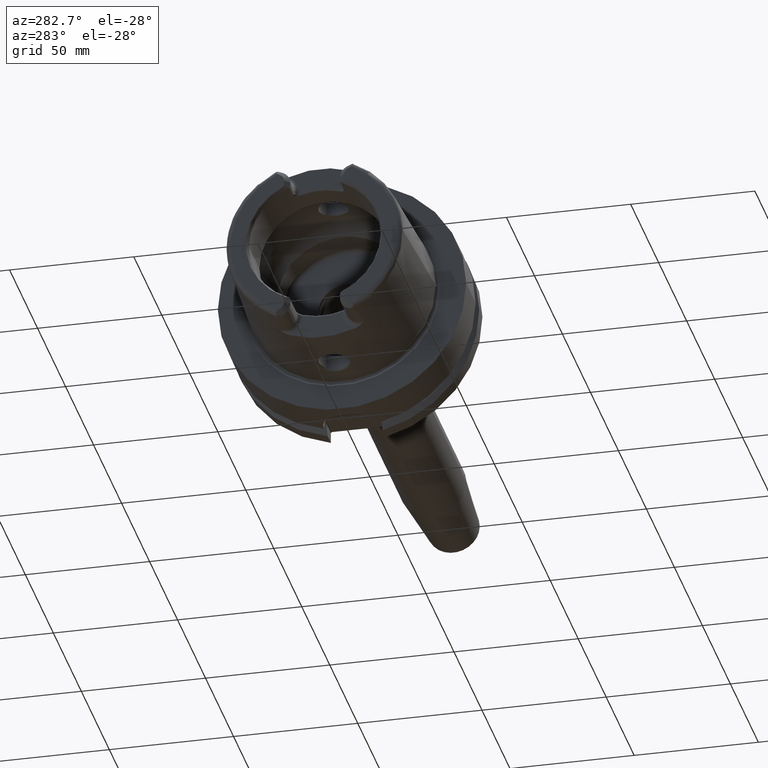
[diagram: clean part render]
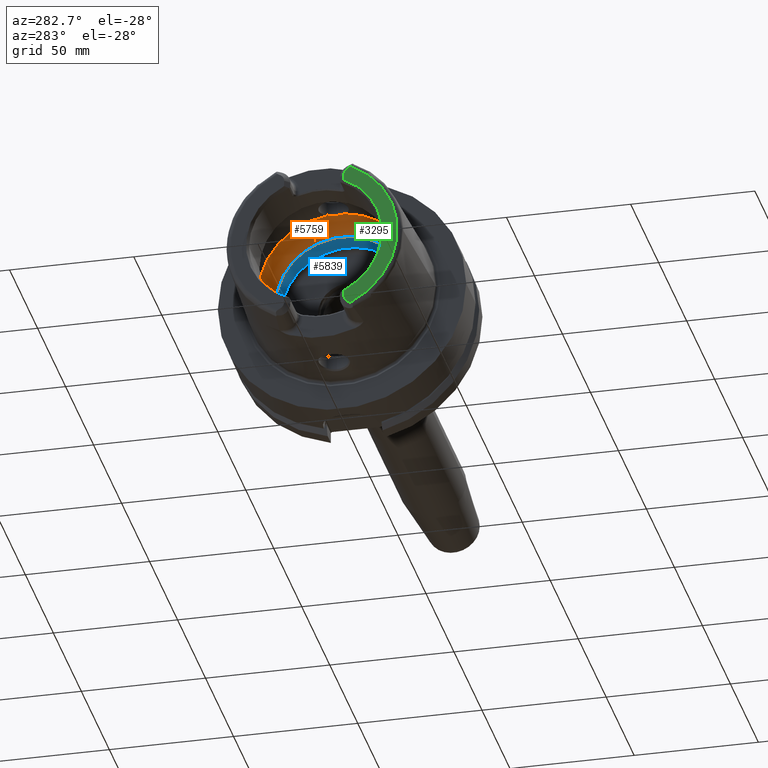
[diagram: same view with three faces highlighted in distinct colors, each labeled with its STEP entity id]
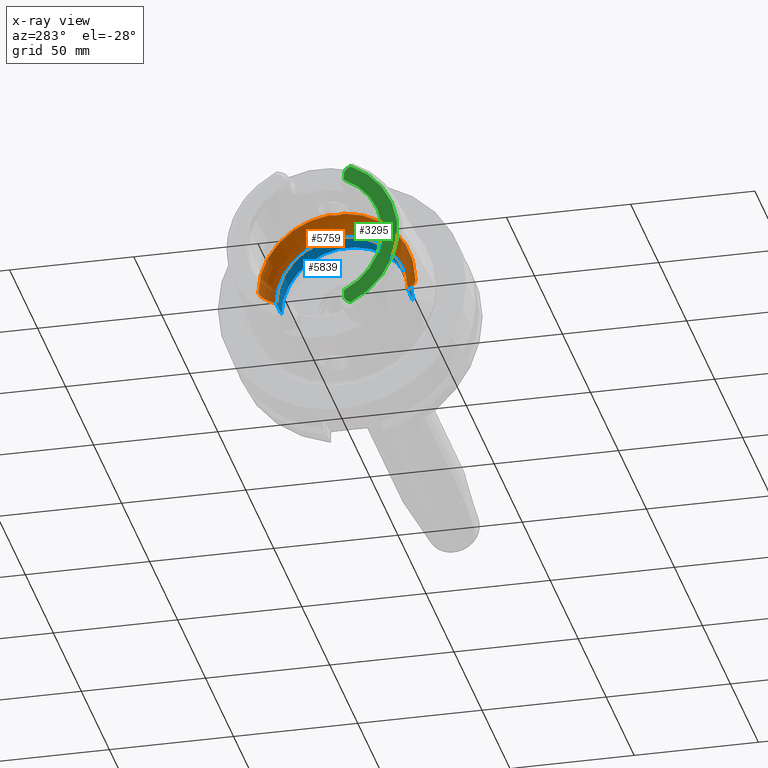
[diagram: x-ray of the same camera — body ghosted, the three highlighted faces saturated]
A machine part, auxiliary view with three faces highlighted in distinct colors.
The next image is the same camera in x-ray (body ghosted, the three faces saturated) — at least one of them is partly hidden behind the body in this view.
Their STEP definitions:

[orange] entity #5759 — the highlighted toroidal blend (fillet) surface has major radius 19.5 mm and minor (blend) radius 12 mm.
#2082=CARTESIAN_POINT('',(-9.E0,0.E0,3.147008518506E1));
#2083=CARTESIAN_POINT('',(-9.E0,2.141252053900E-1,3.147008518506E1));
#2084=CARTESIAN_POINT('',(-9.022897579641E0,6.436731047292E-1,
3.146736073712E1));
#2085=CARTESIAN_POINT('',(-9.127427069178E0,1.286248325661E0,3.145454181001E1));
#2086=CARTESIAN_POINT('',(-9.301031145484E0,1.913730198969E0,3.143197920586E1));
#2087=CARTESIAN_POINT('',(-9.539946842554E0,2.515068696018E0,3.139832080387E1));
#2088=CARTESIAN_POINT('',(-9.738529982809E0,2.891645116602E0,3.136752560017E1));
#2089=CARTESIAN_POINT('',(-9.846794344809E0,3.073185883624E0,3.134972932139E1));
#2091=CARTESIAN_POINT('',(-9.846794344809E0,-3.073185883624E0,
3.134972932139E1));
#2092=CARTESIAN_POINT('',(-9.738534471789E0,-2.891652643851E0,
3.136752486228E1));
#2093=CARTESIAN_POINT('',(-9.539946477828E0,-2.515078628379E0,
3.139832107651E1));
#2094=CARTESIAN_POINT('',(-9.300974895981E0,-1.913573808680E0,
3.143198691417E1));
#2095=CARTESIAN_POINT('',(-9.127396838585E0,-1.286102505522E0,
3.145454553504E1));
#2096=CARTESIAN_POINT('',(-9.022886850943E0,-6.435548392987E-1,
3.146736203025E1));
#2097=CARTESIAN_POINT('',(-9.E0,-2.140793620984E-1,3.147008518506E1));
#2098=CARTESIAN_POINT('',(-9.E0,0.E0,3.147008518506E1));
#2100=CARTESIAN_POINT('',(-1.E-1,0.E0,0.E0));
#2101=DIRECTION('',(1.E0,0.E0,0.E0));
#2102=DIRECTION('',(0.E0,1.E0,0.E0));
#2103=AXIS2_PLACEMENT_3D('',#2100,#2101,#2102);
#2129=CARTESIAN_POINT('',(-9.846794344809E0,0.E0,0.E0));
#2130=DIRECTION('',(1.E0,0.E0,0.E0));
#2131=DIRECTION('',(0.E0,1.E0,0.E0));
#2132=AXIS2_PLACEMENT_3D('',#2129,#2130,#2131);
#2134=CARTESIAN_POINT('',(-9.846794344809E0,0.E0,0.E0));
#2135=DIRECTION('',(1.E0,0.E0,0.E0));
#2136=DIRECTION('',(0.E0,-9.756145662299E-2,9.952295022665E-1));
#2137=AXIS2_PLACEMENT_3D('',#2134,#2135,#2136);
#2238=CARTESIAN_POINT('',(-9.846794344809E0,1.95E1,0.E0));
#2239=DIRECTION('',(0.E0,0.E0,1.E0));
#2240=DIRECTION('',(8.122328620674E-1,5.833333333333E-1,0.E0));
#2241=AXIS2_PLACEMENT_3D('',#2238,#2239,#2240);
#2248=CARTESIAN_POINT('',(-9.846794344809E0,-1.95E1,0.E0));
#2249=DIRECTION('',(0.E0,0.E0,-1.E0));
#2250=DIRECTION('',(8.122328620674E-1,-5.833333333333E-1,0.E0));
#2251=AXIS2_PLACEMENT_3D('',#2248,#2249,#2250);
#2753=CARTESIAN_POINT('',(-1.E-1,2.65E1,0.E0));
#2754=VERTEX_POINT('',#2753);
#2755=CARTESIAN_POINT('',(-9.846794344809E0,3.15E1,0.E0));
#2756=VERTEX_POINT('',#2755);
#2765=CARTESIAN_POINT('',(-1.E-1,-2.65E1,0.E0));
#2766=VERTEX_POINT('',#2765);
#2767=CARTESIAN_POINT('',(-9.846794344809E0,-3.15E1,0.E0));
#2768=VERTEX_POINT('',#2767);
#2934=VERTEX_POINT('',#2082);
#2935=VERTEX_POINT('',#2089);
#2936=VERTEX_POINT('',#2091);
#5740=CARTESIAN_POINT('',(-9.846794344809E0,0.E0,0.E0));
#5741=DIRECTION('',(1.E0,0.E0,0.E0));
#5742=DIRECTION('',(0.E0,-1.E0,0.E0));
#5743=AXIS2_PLACEMENT_3D('',#5740,#5741,#5742);
#5744=TOROIDAL_SURFACE('',#5743,1.95E1,1.2E1);
#5745=ORIENTED_EDGE('',*,*,#5717,.F.);
#5746=ORIENTED_EDGE('',*,*,#5443,.F.);
#5748=ORIENTED_EDGE('',*,*,#5747,.T.);
#5750=ORIENTED_EDGE('',*,*,#5749,.F.);
#5752=ORIENTED_EDGE('',*,*,#5751,.F.);
#5754=ORIENTED_EDGE('',*,*,#5753,.T.);
#5756=ORIENTED_EDGE('',*,*,#5755,.T.);
#5757=EDGE_LOOP('',(#5745,#5746,#5748,#5750,#5752,#5754,#5756));
#5758=FACE_OUTER_BOUND('',#5757,.F.);
#5759=ADVANCED_FACE('',(#5758),#5744,.F.);
#2090=B_SPLINE_CURVE_WITH_KNOTS('',3,(#2082,#2083,#2084,#2085,#2086,#2087,#2088,
#2089),.UNSPECIFIED.,.F.,.F.,(4,1,1,1,1,4),(0.E0,2.E-1,4.E-1,6.E-1,8.E-1,1.E0),
.UNSPECIFIED.);
#2099=B_SPLINE_CURVE_WITH_KNOTS('',3,(#2091,#2092,#2093,#2094,#2095,#2096,#2097,
#2098),.UNSPECIFIED.,.F.,.F.,(4,1,1,1,1,4),(0.E0,2.E-1,4.E-1,6.E-1,8.E-1,1.E0),
.UNSPECIFIED.);
#2104=CIRCLE('',#2103,2.65E1);
#2133=CIRCLE('',#2132,3.15E1);
#2138=CIRCLE('',#2137,3.15E1);
#2242=CIRCLE('',#2241,1.2E1);
#2252=CIRCLE('',#2251,1.2E1);
#5443=EDGE_CURVE('',#2936,#2934,#2099,.T.);
#5717=EDGE_CURVE('',#2934,#2935,#2090,.T.);
#5747=EDGE_CURVE('',#2936,#2768,#2138,.T.);
#5749=EDGE_CURVE('',#2766,#2768,#2252,.T.);
#5751=EDGE_CURVE('',#2754,#2766,#2104,.T.);
#5753=EDGE_CURVE('',#2754,#2756,#2242,.T.);
#5755=EDGE_CURVE('',#2756,#2935,#2133,.T.);

[blue] entity #5839 — the highlighted cylindrical surface (partial cylindrical patch) has radius 26.5 mm, axis along (1, 0, 0).
#2100=CARTESIAN_POINT('',(-1.E-1,0.E0,0.E0));
#2101=DIRECTION('',(1.E0,0.E0,0.E0));
#2102=DIRECTION('',(0.E0,1.E0,0.E0));
#2103=AXIS2_PLACEMENT_3D('',#2100,#2101,#2102);
#2262=DIRECTION('',(-1.E0,0.E0,0.E0));
#2263=VECTOR('',#2262,9.4E0);
#2264=CARTESIAN_POINT('',(9.3E0,2.65E1,0.E0));
#2265=LINE('',#2264,#2263);
#2271=DIRECTION('',(-1.E0,0.E0,0.E0));
#2272=VECTOR('',#2271,9.4E0);
#2273=CARTESIAN_POINT('',(9.3E0,-2.65E1,0.E0));
#2274=LINE('',#2273,#2272);
#2275=CARTESIAN_POINT('',(9.3E0,0.E0,0.E0));
#2276=DIRECTION('',(1.E0,0.E0,0.E0));
#2277=DIRECTION('',(0.E0,1.E0,0.E0));
#2278=AXIS2_PLACEMENT_3D('',#2275,#2276,#2277);
#2746=CARTESIAN_POINT('',(9.3E0,2.65E1,0.E0));
#2748=VERTEX_POINT('',#2746);
#2750=CARTESIAN_POINT('',(9.3E0,-2.65E1,0.E0));
#2752=VERTEX_POINT('',#2750);
#2753=CARTESIAN_POINT('',(-1.E-1,2.65E1,0.E0));
#2754=VERTEX_POINT('',#2753);
#2765=CARTESIAN_POINT('',(-1.E-1,-2.65E1,0.E0));
#2766=VERTEX_POINT('',#2765);
#5827=CARTESIAN_POINT('',(-5.3125E1,0.E0,0.E0));
#5828=DIRECTION('',(1.E0,0.E0,0.E0));
#5829=DIRECTION('',(0.E0,-1.E0,0.E0));
#5830=AXIS2_PLACEMENT_3D('',#5827,#5828,#5829);
#5831=CYLINDRICAL_SURFACE('',#5830,2.65E1);
#5832=ORIENTED_EDGE('',*,*,#5817,.T.);
#5833=ORIENTED_EDGE('',*,*,#5751,.T.);
#5834=ORIENTED_EDGE('',*,*,#5821,.F.);
#5836=ORIENTED_EDGE('',*,*,#5835,.F.);
#5837=EDGE_LOOP('',(#5832,#5833,#5834,#5836));
#5838=FACE_OUTER_BOUND('',#5837,.F.);
#5839=ADVANCED_FACE('',(#5838),#5831,.F.);
#2104=CIRCLE('',#2103,2.65E1);
#2279=CIRCLE('',#2278,2.65E1);
#5751=EDGE_CURVE('',#2754,#2766,#2104,.T.);
#5817=EDGE_CURVE('',#2748,#2754,#2265,.T.);
#5821=EDGE_CURVE('',#2752,#2766,#2274,.T.);
#5835=EDGE_CURVE('',#2748,#2752,#2279,.T.);

[green] entity #3295 — the highlighted planar face has unit normal (1, 0, 0).
#126=DIRECTION('',(0.E0,0.E0,-1.E0));
#127=VECTOR('',#126,2.370180025047E0);
#128=CARTESIAN_POINT('',(-5.E1,-1.201E1,-2.458981997495E1));
#129=LINE('',#128,#127);
#130=DIRECTION('',(0.E0,0.E0,1.E0));
#131=VECTOR('',#130,2.370180025047E0);
#132=CARTESIAN_POINT('',(-5.E1,-1.201E1,2.458981997495E1));
#133=LINE('',#132,#131);
#134=CARTESIAN_POINT('',(-5.E1,-1.501E1,2.696E1));
#135=DIRECTION('',(1.E0,0.E0,0.E0));
#136=DIRECTION('',(0.E0,1.E0,-1.657933050107E-14));
#137=AXIS2_PLACEMENT_3D('',#134,#135,#136);
#139=DIRECTION('',(0.E0,8.533905854017E-1,-5.212720103245E-1));
#140=VECTOR('',#139,1.392150953463E0);
#141=CARTESIAN_POINT('',(-5.E1,-1.463423248617E1,3.024586108239E1));
#142=LINE('',#141,#140);
#143=DIRECTION('',(0.E0,8.533905854017E-1,5.212720103245E-1));
#144=VECTOR('',#143,1.392150953463E0);
#145=CARTESIAN_POINT('',(-5.E1,-1.463423248617E1,-3.024586108239E1));
#146=LINE('',#145,#144);
#147=CARTESIAN_POINT('',(-5.E1,-1.501E1,-2.696E1));
#148=DIRECTION('',(-1.E0,0.E0,0.E0));
#149=DIRECTION('',(0.E0,1.E0,0.E0));
#150=AXIS2_PLACEMENT_3D('',#147,#148,#149);
#197=CARTESIAN_POINT('',(-5.E1,0.E0,0.E0));
#198=DIRECTION('',(1.E0,0.E0,0.E0));
#199=DIRECTION('',(0.E0,-4.388653384185E-1,8.985528447091E-1));
#200=AXIS2_PLACEMENT_3D('',#197,#198,#199);
#359=CARTESIAN_POINT('',(-5.E1,0.E0,0.E0));
#360=DIRECTION('',(-1.E0,0.E0,0.E0));
#361=DIRECTION('',(0.E0,-4.355401503799E-1,-9.001693048572E-1));
#362=AXIS2_PLACEMENT_3D('',#359,#360,#361);
#2820=CARTESIAN_POINT('',(-5.E1,-1.201E1,2.458981997495E1));
#2821=CARTESIAN_POINT('',(-5.E1,-1.201E1,2.696E1));
#2822=VERTEX_POINT('',#2820);
#2823=VERTEX_POINT('',#2821);
#2824=CARTESIAN_POINT('',(-5.E1,-1.344618396903E1,2.952017175621E1));
#2825=VERTEX_POINT('',#2824);
#2826=CARTESIAN_POINT('',(-5.E1,-1.463423248617E1,3.024586108239E1));
#2827=VERTEX_POINT('',#2826);
#2913=CARTESIAN_POINT('',(-5.E1,-1.201E1,-2.458981997495E1));
#2914=CARTESIAN_POINT('',(-5.E1,-1.201E1,-2.696E1));
#2915=VERTEX_POINT('',#2913);
#2916=VERTEX_POINT('',#2914);
#2917=CARTESIAN_POINT('',(-5.E1,-1.344618396903E1,-2.952017175621E1));
#2918=VERTEX_POINT('',#2917);
#2919=CARTESIAN_POINT('',(-5.E1,-1.463423248617E1,-3.024586108239E1));
#2920=VERTEX_POINT('',#2919);
#3273=CARTESIAN_POINT('',(-5.E1,0.E0,0.E0));
#3274=DIRECTION('',(1.E0,0.E0,0.E0));
#3275=DIRECTION('',(0.E0,-1.E0,0.E0));
#3276=AXIS2_PLACEMENT_3D('',#3273,#3274,#3275);
#3277=PLANE('',#3276);
#3279=ORIENTED_EDGE('',*,*,#3278,.F.);
#3281=ORIENTED_EDGE('',*,*,#3280,.F.);
#3283=ORIENTED_EDGE('',*,*,#3282,.T.);
#3285=ORIENTED_EDGE('',*,*,#3284,.T.);
#3286=ORIENTED_EDGE('',*,*,#3237,.F.);
#3288=ORIENTED_EDGE('',*,*,#3287,.F.);
#3290=ORIENTED_EDGE('',*,*,#3289,.T.);
#3292=ORIENTED_EDGE('',*,*,#3291,.F.);
#3293=EDGE_LOOP('',(#3279,#3281,#3283,#3285,#3286,#3288,#3290,#3292));
#3294=FACE_OUTER_BOUND('',#3293,.F.);
#3295=ADVANCED_FACE('',(#3294),#3277,.F.);
#138=CIRCLE('',#137,3.E0);
#151=CIRCLE('',#150,3.E0);
#201=CIRCLE('',#200,2.736602540378E1);
#363=CIRCLE('',#362,3.360019156306E1);
#3237=EDGE_CURVE('',#2827,#2825,#142,.T.);
#3278=EDGE_CURVE('',#2915,#2916,#129,.T.);
#3280=EDGE_CURVE('',#2822,#2915,#201,.T.);
#3282=EDGE_CURVE('',#2822,#2823,#133,.T.);
#3284=EDGE_CURVE('',#2823,#2825,#138,.T.);
#3287=EDGE_CURVE('',#2920,#2827,#363,.T.);
#3289=EDGE_CURVE('',#2920,#2918,#146,.T.);
#3291=EDGE_CURVE('',#2916,#2918,#151,.T.);